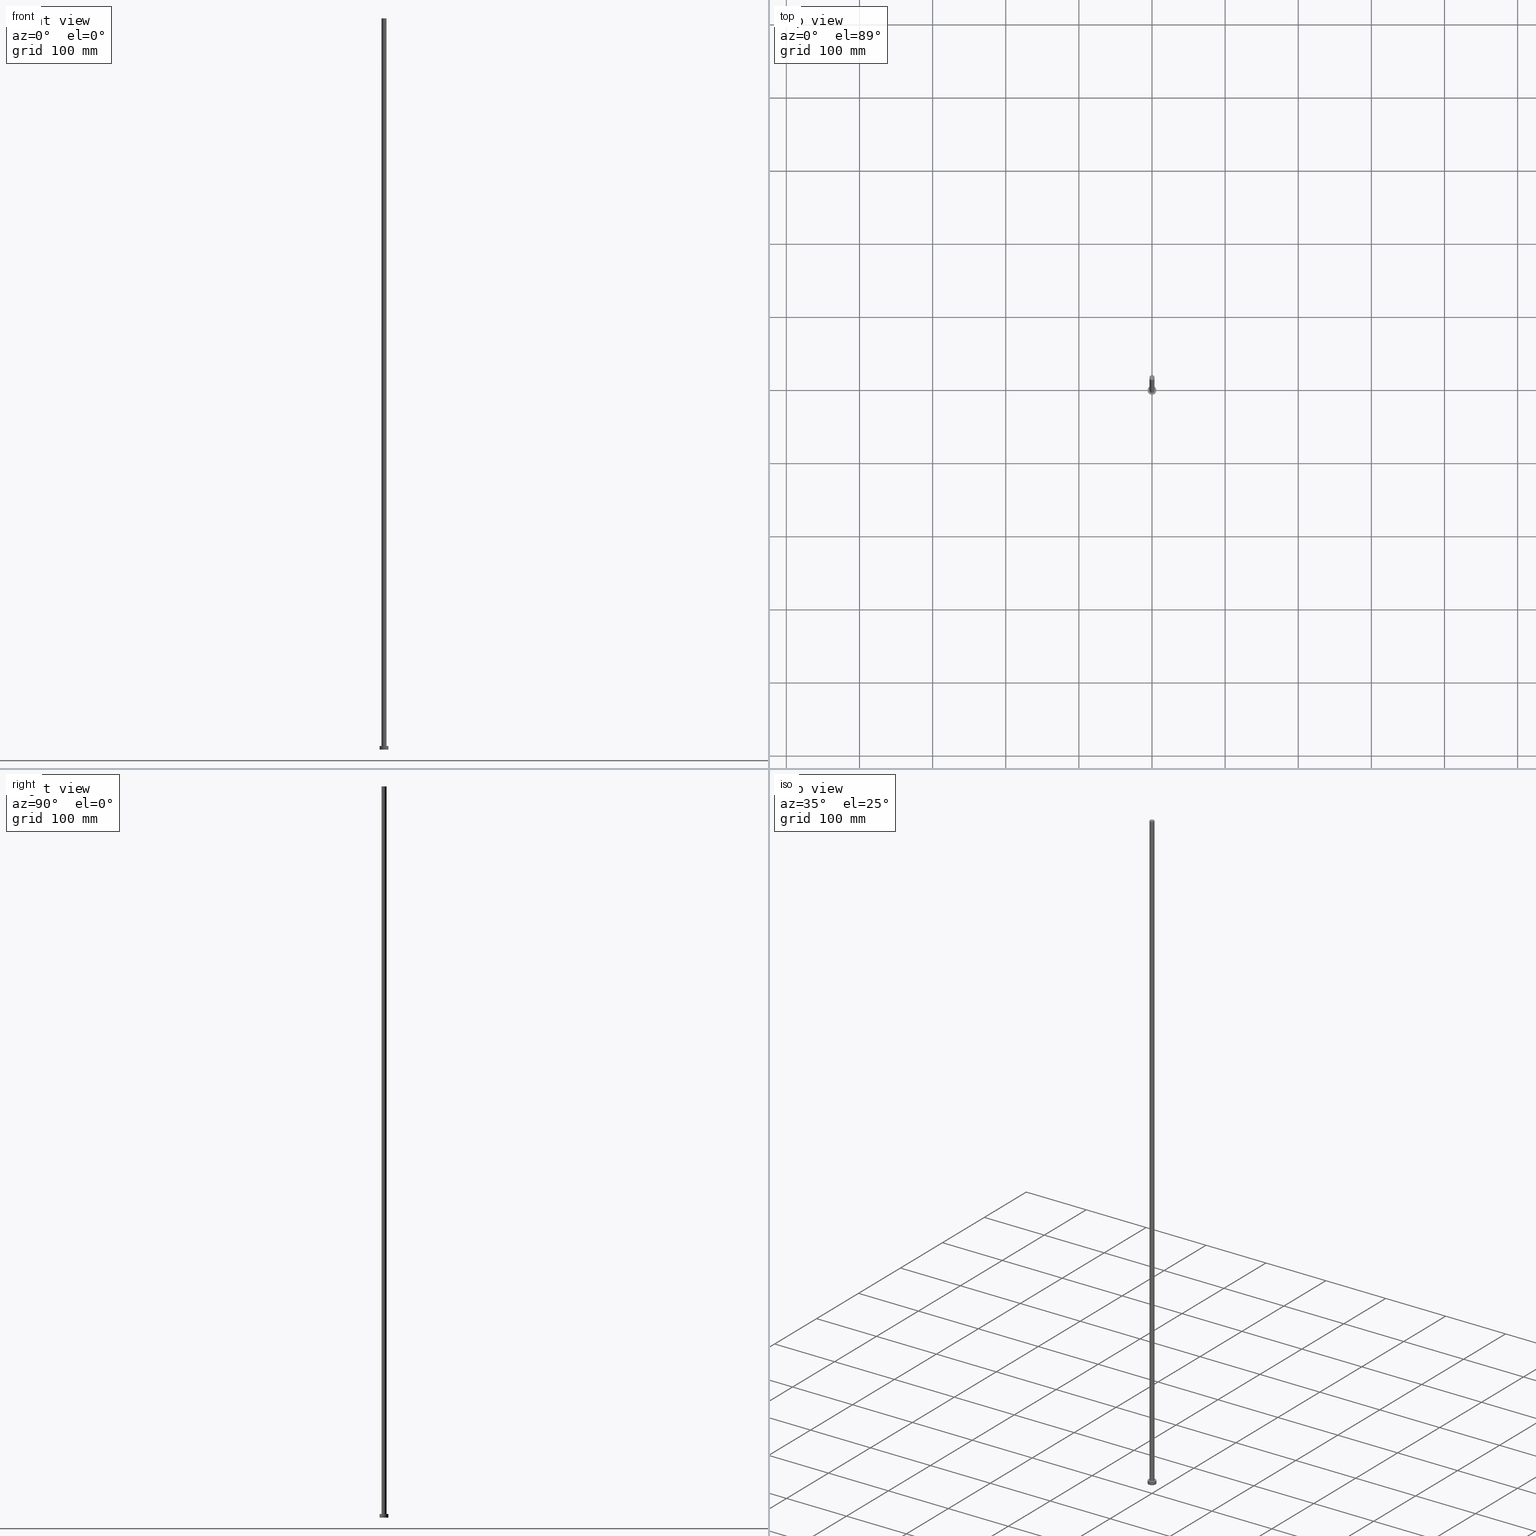
[diagram: canonical four-view strip — front | top / right | iso, engineering-drawing reading convention]
A machine part, canonical four-view strip (front | top / right | iso — engineering-drawing reading convention). The complete STEP part file that produces these views, byte-faithful:
ISO-10303-21;
HEADER;
FILE_DESCRIPTION (( 'STEP AP203' ),
    '1' );
FILE_NAME ('a66b.STEP',
    '2023-02-12T11:58:07',
    ( '' ),
    ( '' ),
    'SwSTEP 2.0',
    'SolidWorks 2019',
    '' );
FILE_SCHEMA (( 'CONFIG_CONTROL_DESIGN' ));
ENDSEC;

DATA;
#1 =( LENGTH_UNIT ( ) NAMED_UNIT ( * ) SI_UNIT ( .MILLI., .METRE. ) );
#2 = EDGE_LOOP ( 'NONE', ( #220, #7 ) ) ;
#3 = ORIENTED_EDGE ( 'NONE', *, *, #207, .F. ) ;
#4 = VECTOR ( 'NONE', #209, 1000.000000000000000 ) ;
#5 = ADVANCED_FACE ( 'NONE', ( #177 ), #117, .T. ) ;
#6 = CARTESIAN_POINT ( 'NONE',  ( 6.000000000000000888, 7.347880794884120722E-16, 0.000000000000000000 ) ) ;
#7 = ORIENTED_EDGE ( 'NONE', *, *, #219, .T. ) ;
#8 = DIRECTION ( 'NONE',  ( -0.000000000000000000, -0.000000000000000000, -1.000000000000000000 ) ) ;
#9 = CYLINDRICAL_SURFACE ( 'NONE', #119, 6.000000000000000888 ) ;
#10 = PERSON_AND_ORGANIZATION ( #11, #43 ) ;
#11 = PERSON ( 'NEUR�EN�', 'NEUR�EN�', 'NEUR�EN�', ('NEUR�EN�'), ('NEUR�EN�'), ('NEUR�EN�') ) ;
#12 = ADVANCED_FACE ( 'NONE', ( #161 ), #245, .T. ) ;
#13 = DIRECTION ( 'NONE',  ( 1.000000000000000000, 0.000000000000000000, 0.000000000000000000 ) ) ;
#14 = PERSON_AND_ORGANIZATION ( #11, #43 ) ;
#15 = DIRECTION ( 'NONE',  ( 1.000000000000000000, 0.000000000000000000, 0.000000000000000000 ) ) ;
#16 = VECTOR ( 'NONE', #105, 1000.000000000000000 ) ;
#17 = EDGE_LOOP ( 'NONE', ( #102, #158, #76, #215 ) ) ;
#18 = PERSON_AND_ORGANIZATION_ROLE ( 'design_supplier' ) ;
#19 = CC_DESIGN_APPROVAL ( #114, ( #20 ) ) ;
#20 = PRODUCT_DEFINITION ( 'NEZN�M�', '', #238, #185 ) ;
#21 = CARTESIAN_POINT ( 'NONE',  ( 0.000000000000000000, 0.000000000000000000, 1000.000000000000000 ) ) ;
#22 = ORIENTED_EDGE ( 'NONE', *, *, #154, .T. ) ;
#23 = APPROVAL ( #187, 'NEUR�EN�' ) ;
#24 = CARTESIAN_POINT ( 'NONE',  ( 6.000000000000000888, 7.347880794884120722E-16, 5.000000000000000000 ) ) ;
#25 = ADVANCED_BREP_SHAPE_REPRESENTATION ( 'a66b', ( #136, #225 ), #188 ) ;
#26 = APPROVAL_PERSON_ORGANIZATION ( #10, #23, #83 ) ;
#27 = CARTESIAN_POINT ( 'NONE',  ( 0.000000000000000000, 0.000000000000000000, 5.000000000000000000 ) ) ;
#28 = CYLINDRICAL_SURFACE ( 'NONE', #163, 3.500000000000000000 ) ;
#29 = DIRECTION ( 'NONE',  ( 1.000000000000000000, 0.000000000000000000, -0.000000000000000000 ) ) ;
#30 = EDGE_CURVE ( 'NONE', #217, #239, #96, .T. ) ;
#31 = APPROVAL_DATE_TIME ( #205, #114 ) ;
#32 = CC_DESIGN_PERSON_AND_ORGANIZATION_ASSIGNMENT ( #251, #18, ( #238 ) ) ;
#33 = PERSON_AND_ORGANIZATION ( #11, #43 ) ;
#34 = AXIS2_PLACEMENT_3D ( 'NONE', #125, #143, #94 ) ;
#35 = DIRECTION ( 'NONE',  ( -0.000000000000000000, -0.000000000000000000, -1.000000000000000000 ) ) ;
#36 = CARTESIAN_POINT ( 'NONE',  ( 0.000000000000000000, 0.000000000000000000, 0.000000000000000000 ) ) ;
#37 = DIRECTION ( 'NONE',  ( 1.000000000000000000, 0.000000000000000000, 0.000000000000000000 ) ) ;
#38 = ORIENTED_EDGE ( 'NONE', *, *, #173, .F. ) ;
#39 = DIRECTION ( 'NONE',  ( 1.000000000000000000, 0.000000000000000000, 0.000000000000000000 ) ) ;
#40 = CIRCLE ( 'NONE', #181, 6.000000000000000888 ) ;
#41 = ORIENTED_EDGE ( 'NONE', *, *, #122, .F. ) ;
#42 = ORIENTED_EDGE ( 'NONE', *, *, #30, .F. ) ;
#43 = ORGANIZATION ( 'NEUR�EN�', 'NEUR�EN�', '' ) ;
#44 = VERTEX_POINT ( 'NONE', #6 ) ;
#45 = CC_DESIGN_PERSON_AND_ORGANIZATION_ASSIGNMENT ( #48, #228, ( #20 ) ) ;
#46 = LINE ( 'NONE', #24, #246 ) ;
#47 = APPLICATION_PROTOCOL_DEFINITION ( 'international standard', 'config_control_design', 1994, #211 ) ;
#48 = PERSON_AND_ORGANIZATION ( #11, #43 ) ;
#49 = EDGE_CURVE ( 'NONE', #217, #155, #145, .T. ) ;
#50 = APPROVAL_DATE_TIME ( #72, #23 ) ;
#51 = CIRCLE ( 'NONE', #85, 6.000000000000000888 ) ;
#52 = CARTESIAN_POINT ( 'NONE',  ( 0.000000000000000000, 0.000000000000000000, 5.000000000000000000 ) ) ;
#53 = DIRECTION ( 'NONE',  ( 1.000000000000000000, 0.000000000000000000, 0.000000000000000000 ) ) ;
#54 = PERSON_AND_ORGANIZATION_ROLE ( 'classification_officer' ) ;
#55 = CARTESIAN_POINT ( 'NONE',  ( 0.000000000000000000, 0.000000000000000000, 1000.000000000000000 ) ) ;
#56 = EDGE_LOOP ( 'NONE', ( #41, #190, #111, #22 ) ) ;
#57 = EDGE_LOOP ( 'NONE', ( #116, #138 ) ) ;
#58 = DIRECTION ( 'NONE',  ( 0.000000000000000000, 0.000000000000000000, 1.000000000000000000 ) ) ;
#59 = PRODUCT_DEFINITION_SHAPE ( 'NONE', 'NONE',  #20 ) ;
#60 = APPROVAL_PERSON_ORGANIZATION ( #149, #114, #64 ) ;
#61 = DIRECTION ( 'NONE',  ( -0.000000000000000000, -0.000000000000000000, -1.000000000000000000 ) ) ;
#62 = CARTESIAN_POINT ( 'NONE',  ( 0.000000000000000000, 0.000000000000000000, 5.000000000000000000 ) ) ;
#63 = EDGE_CURVE ( 'NONE', #252, #44, #46, .T. ) ;
#64 = APPROVAL_ROLE ( '' ) ;
#65 = LINE ( 'NONE', #86, #4 ) ;
#66 = ADVANCED_FACE ( 'NONE', ( #80 ), #28, .T. ) ;
#67 = AXIS2_PLACEMENT_3D ( 'NONE', #200, #134, #71 ) ;
#68 = CALENDAR_DATE ( 2023, 12, 2 ) ;
#69 = CALENDAR_DATE ( 2023, 12, 2 ) ;
#70 = CARTESIAN_POINT ( 'NONE',  ( 0.000000000000000000, 0.000000000000000000, 0.000000000000000000 ) ) ;
#71 = DIRECTION ( 'NONE',  ( -1.000000000000000000, 0.000000000000000000, 0.000000000000000000 ) ) ;
#72 = DATE_AND_TIME ( #82, #166 ) ;
#73 = CARTESIAN_POINT ( 'NONE',  ( 3.500000000000000000, 4.286263797015735609E-16, 1000.000000000000000 ) ) ;
#74 = ORIENTED_EDGE ( 'NONE', *, *, #207, .T. ) ;
#75 = ADVANCED_FACE ( 'NONE', ( #224, #123 ), #203, .T. ) ;
#76 = ORIENTED_EDGE ( 'NONE', *, *, #140, .T. ) ;
#77 = ORIENTED_EDGE ( 'NONE', *, *, #49, .T. ) ;
#78 = CC_DESIGN_APPROVAL ( #167, ( #241 ) ) ;
#79 = DIRECTION ( 'NONE',  ( 1.000000000000000000, 0.000000000000000000, 0.000000000000000000 ) ) ;
#80 = FACE_OUTER_BOUND ( 'NONE', #56, .T. ) ;
#81 = DIRECTION ( 'NONE',  ( 1.000000000000000000, 0.000000000000000000, -0.000000000000000000 ) ) ;
#82 = CALENDAR_DATE ( 2023, 12, 2 ) ;
#83 = APPROVAL_ROLE ( '' ) ;
#84 = CARTESIAN_POINT ( 'NONE',  ( -6.000000000000000888, 0.000000000000000000, 0.000000000000000000 ) ) ;
#85 = AXIS2_PLACEMENT_3D ( 'NONE', #135, #170, #39 ) ;
#86 = CARTESIAN_POINT ( 'NONE',  ( 3.500000000000000000, 4.286263797015735609E-16, 1000.000000000000000 ) ) ;
#87 = DIRECTION ( 'NONE',  ( 0.000000000000000000, 0.000000000000000000, 1.000000000000000000 ) ) ;
#88 = DIRECTION ( 'NONE',  ( 1.000000000000000000, 0.000000000000000000, 0.000000000000000000 ) ) ;
#89 = ORIENTED_EDGE ( 'NONE', *, *, #186, .T. ) ;
#90 = EDGE_LOOP ( 'NONE', ( #3, #221, #213, #42 ) ) ;
#91 = ADVANCED_FACE ( 'NONE', ( #183 ), #9, .T. ) ;
#92 = DIRECTION ( 'NONE',  ( 0.000000000000000000, 0.000000000000000000, 1.000000000000000000 ) ) ;
#93 = AXIS2_PLACEMENT_3D ( 'NONE', #172, #233, #234 ) ;
#94 = DIRECTION ( 'NONE',  ( 1.000000000000000000, 0.000000000000000000, 0.000000000000000000 ) ) ;
#95 = DIRECTION ( 'NONE',  ( 0.000000000000000000, 0.000000000000000000, 1.000000000000000000 ) ) ;
#96 = LINE ( 'NONE', #243, #180 ) ;
#97 = ORIENTED_EDGE ( 'NONE', *, *, #63, .T. ) ;
#98 = CIRCLE ( 'NONE', #249, 3.500000000000000000 ) ;
#99 = LOCAL_TIME ( 12, 58, 7.000000000000000000, #189 ) ;
#100 = DIRECTION ( 'NONE',  ( 0.000000000000000000, 0.000000000000000000, 1.000000000000000000 ) ) ;
#101 = CARTESIAN_POINT ( 'NONE',  ( 0.000000000000000000, 0.000000000000000000, 1000.000000000000000 ) ) ;
#102 = ORIENTED_EDGE ( 'NONE', *, *, #63, .F. ) ;
#103 = LOCAL_TIME ( 12, 58, 7.000000000000000000, #168 ) ;
#104 = DATE_AND_TIME ( #69, #223 ) ;
#105 = DIRECTION ( 'NONE',  ( -0.000000000000000000, -0.000000000000000000, -1.000000000000000000 ) ) ;
#106 = ADVANCED_FACE ( 'NONE', ( #126 ), #151, .T. ) ;
#107 = PERSON_AND_ORGANIZATION_ROLE ( 'creator' ) ;
#108 = DIRECTION ( 'NONE',  ( 0.000000000000000000, 0.000000000000000000, 1.000000000000000000 ) ) ;
#109 = APPROVAL_ROLE ( '' ) ;
#110 = CARTESIAN_POINT ( 'NONE',  ( 0.000000000000000000, 0.000000000000000000, 5.000000000000000000 ) ) ;
#111 = ORIENTED_EDGE ( 'NONE', *, *, #30, .T. ) ;
#112 = AXIS2_PLACEMENT_3D ( 'NONE', #110, #197, #15 ) ;
#113 = CARTESIAN_POINT ( 'NONE',  ( 6.000000000000000888, 7.347880794884120722E-16, 5.000000000000000000 ) ) ;
#114 = APPROVAL ( #230, 'NEUR�EN�' ) ;
#115 = CARTESIAN_POINT ( 'NONE',  ( 3.500000000000000000, 4.286263797015735609E-16, 5.000000000000000000 ) ) ;
#116 = ORIENTED_EDGE ( 'NONE', *, *, #154, .F. ) ;
#117 = CYLINDRICAL_SURFACE ( 'NONE', #67, 6.000000000000000888 ) ;
#118 = PERSON_AND_ORGANIZATION_ROLE ( 'design_owner' ) ;
#119 = AXIS2_PLACEMENT_3D ( 'NONE', #62, #35, #227 ) ;
#120 = CC_DESIGN_DATE_AND_TIME_ASSIGNMENT ( #104, #226, ( #20 ) ) ;
#121 = VERTEX_POINT ( 'NONE', #84 ) ;
#122 = EDGE_CURVE ( 'NONE', #155, #174, #65, .T. ) ;
#123 = FACE_OUTER_BOUND ( 'NONE', #2, .T. ) ;
#124 = CIRCLE ( 'NONE', #93, 6.000000000000000888 ) ;
#125 = CARTESIAN_POINT ( 'NONE',  ( 0.000000000000000000, 0.000000000000000000, 1000.000000000000000 ) ) ;
#126 = FACE_OUTER_BOUND ( 'NONE', #201, .T. ) ;
#127 = CARTESIAN_POINT ( 'NONE',  ( -6.000000000000000888, 0.000000000000000000, 5.000000000000000000 ) ) ;
#128 = EDGE_LOOP ( 'NONE', ( #38, #255 ) ) ;
#129 = COORDINATED_UNIVERSAL_TIME_OFFSET ( 1, 0, .AHEAD. ) ;
#130 = DATE_AND_TIME ( #232, #206 ) ;
#131 = AXIS2_PLACEMENT_3D ( 'NONE', #27, #100, #81 ) ;
#132 = CIRCLE ( 'NONE', #148, 3.500000000000000000 ) ;
#133 = PLANE ( 'NONE',  #192 ) ;
#134 = DIRECTION ( 'NONE',  ( -0.000000000000000000, -0.000000000000000000, -1.000000000000000000 ) ) ;
#135 = CARTESIAN_POINT ( 'NONE',  ( 0.000000000000000000, 0.000000000000000000, 5.000000000000000000 ) ) ;
#136 = MANIFOLD_SOLID_BREP ( 'P�idat vysunut�m3', #159 ) ;
#137 = CARTESIAN_POINT ( 'NONE',  ( 0.000000000000000000, 0.000000000000000000, 5.000000000000000000 ) ) ;
#138 = ORIENTED_EDGE ( 'NONE', *, *, #160, .F. ) ;
#139 = ORIENTED_EDGE ( 'NONE', *, *, #219, .F. ) ;
#140 = EDGE_CURVE ( 'NONE', #198, #121, #247, .T. ) ;
#141 = PRODUCT ( 'a66b', 'a66b', '', ( #178 ) ) ;
#142 = CC_DESIGN_SECURITY_CLASSIFICATION ( #241, ( #238 ) ) ;
#143 = DIRECTION ( 'NONE',  ( 0.000000000000000000, 0.000000000000000000, 1.000000000000000000 ) ) ;
#144 = DIRECTION ( 'NONE',  ( -1.000000000000000000, 0.000000000000000000, 0.000000000000000000 ) ) ;
#145 = CIRCLE ( 'NONE', #34, 3.500000000000000000 ) ;
#146 = CALENDAR_DATE ( 2023, 12, 2 ) ;
#147 = CC_DESIGN_PERSON_AND_ORGANIZATION_ASSIGNMENT ( #242, #118, ( #141 ) ) ;
#148 = AXIS2_PLACEMENT_3D ( 'NONE', #137, #196, #13 ) ;
#149 = PERSON_AND_ORGANIZATION ( #11, #43 ) ;
#150 = APPROVAL_STATUS ( 'not_yet_approved' ) ;
#151 = PLANE ( 'NONE',  #222 ) ;
#152 = COORDINATED_UNIVERSAL_TIME_OFFSET ( 1, 0, .AHEAD. ) ;
#153 = FACE_OUTER_BOUND ( 'NONE', #128, .T. ) ;
#154 = EDGE_CURVE ( 'NONE', #239, #174, #229, .T. ) ;
#155 = VERTEX_POINT ( 'NONE', #73 ) ;
#156 = EDGE_LOOP ( 'NONE', ( #139, #97, #89, #235 ) ) ;
#157 = APPLICATION_CONTEXT ( 'configuration controlled 3d designs of mechanical parts and assemblies' ) ;
#158 = ORIENTED_EDGE ( 'NONE', *, *, #248, .F. ) ;
#159 = CLOSED_SHELL ( 'NONE', ( #12, #91, #5, #75, #244, #66, #106 ) ) ;
#160 = EDGE_CURVE ( 'NONE', #174, #239, #132, .T. ) ;
#161 = FACE_OUTER_BOUND ( 'NONE', #90, .T. ) ;
#162 = CIRCLE ( 'NONE', #202, 6.000000000000000888 ) ;
#163 = AXIS2_PLACEMENT_3D ( 'NONE', #101, #61, #144 ) ;
#164 = CC_DESIGN_APPROVAL ( #23, ( #238 ) ) ;
#165 = APPLICATION_PROTOCOL_DEFINITION ( 'international standard', 'config_control_design', 1994, #157 ) ;
#166 = LOCAL_TIME ( 12, 58, 7.000000000000000000, #129 ) ;
#167 = APPROVAL ( #150, 'NEUR�EN�' ) ;
#168 = COORDINATED_UNIVERSAL_TIME_OFFSET ( 1, 0, .AHEAD. ) ;
#169 = UNCERTAINTY_MEASURE_WITH_UNIT (LENGTH_MEASURE( 1.000000000000000082E-05 ), #1, 'distance_accuracy_value', 'NONE');
#170 = DIRECTION ( 'NONE',  ( 0.000000000000000000, 0.000000000000000000, 1.000000000000000000 ) ) ;
#171 = SHAPE_DEFINITION_REPRESENTATION ( #59, #25 ) ;
#172 = CARTESIAN_POINT ( 'NONE',  ( 0.000000000000000000, 0.000000000000000000, 0.000000000000000000 ) ) ;
#173 = EDGE_CURVE ( 'NONE', #121, #44, #40, .T. ) ;
#174 = VERTEX_POINT ( 'NONE', #115 ) ;
#175 = CARTESIAN_POINT ( 'NONE',  ( -6.000000000000000888, 0.000000000000000000, 5.000000000000000000 ) ) ;
#176 =( NAMED_UNIT ( * ) SI_UNIT ( $, .STERADIAN. ) SOLID_ANGLE_UNIT ( ) );
#177 = FACE_OUTER_BOUND ( 'NONE', #17, .T. ) ;
#178 = MECHANICAL_CONTEXT ( 'NONE', #211, 'mechanical' ) ;
#179 = DIRECTION ( 'NONE',  ( -0.000000000000000000, -0.000000000000000000, -1.000000000000000000 ) ) ;
#180 = VECTOR ( 'NONE', #179, 1000.000000000000000 ) ;
#181 = AXIS2_PLACEMENT_3D ( 'NONE', #70, #87, #88 ) ;
#182 = DIRECTION ( 'NONE',  ( -0.000000000000000000, -0.000000000000000000, -1.000000000000000000 ) ) ;
#183 = FACE_OUTER_BOUND ( 'NONE', #156, .T. ) ;
#184 = DIRECTION ( 'NONE',  ( -1.000000000000000000, 0.000000000000000000, 0.000000000000000000 ) ) ;
#185 = DESIGN_CONTEXT ( 'detailed design', #157, 'design' ) ;
#186 = EDGE_CURVE ( 'NONE', #44, #121, #124, .T. ) ;
#187 = APPROVAL_STATUS ( 'not_yet_approved' ) ;
#188 =( GEOMETRIC_REPRESENTATION_CONTEXT ( 3 ) GLOBAL_UNCERTAINTY_ASSIGNED_CONTEXT ( ( #169 ) ) GLOBAL_UNIT_ASSIGNED_CONTEXT ( ( #1, #237, #176 ) ) REPRESENTATION_CONTEXT ( 'NONE', 'WORKASPACE' ) );
#189 = COORDINATED_UNIVERSAL_TIME_OFFSET ( 1, 0, .AHEAD. ) ;
#190 = ORIENTED_EDGE ( 'NONE', *, *, #49, .F. ) ;
#191 = PRODUCT_RELATED_PRODUCT_CATEGORY ( 'detail', '', ( #141 ) ) ;
#192 = AXIS2_PLACEMENT_3D ( 'NONE', #36, #108, #195 ) ;
#193 = AXIS2_PLACEMENT_3D ( 'NONE', #21, #182, #184 ) ;
#194 = SECURITY_CLASSIFICATION_LEVEL ( 'unclassified' ) ;
#195 = DIRECTION ( 'NONE',  ( 1.000000000000000000, 0.000000000000000000, -0.000000000000000000 ) ) ;
#196 = DIRECTION ( 'NONE',  ( 0.000000000000000000, 0.000000000000000000, 1.000000000000000000 ) ) ;
#197 = DIRECTION ( 'NONE',  ( 0.000000000000000000, 0.000000000000000000, 1.000000000000000000 ) ) ;
#198 = VERTEX_POINT ( 'NONE', #175 ) ;
#199 = CC_DESIGN_PERSON_AND_ORGANIZATION_ASSIGNMENT ( #214, #107, ( #238 ) ) ;
#200 = CARTESIAN_POINT ( 'NONE',  ( 0.000000000000000000, 0.000000000000000000, 5.000000000000000000 ) ) ;
#201 = EDGE_LOOP ( 'NONE', ( #77, #74 ) ) ;
#202 = AXIS2_PLACEMENT_3D ( 'NONE', #52, #58, #53 ) ;
#203 = PLANE ( 'NONE',  #131 ) ;
#204 = CARTESIAN_POINT ( 'NONE',  ( 0.000000000000000000, 0.000000000000000000, 0.000000000000000000 ) ) ;
#205 = DATE_AND_TIME ( #146, #99 ) ;
#206 = LOCAL_TIME ( 12, 58, 7.000000000000000000, #152 ) ;
#207 = EDGE_CURVE ( 'NONE', #155, #217, #98, .T. ) ;
#208 = COORDINATED_UNIVERSAL_TIME_OFFSET ( 1, 0, .AHEAD. ) ;
#209 = DIRECTION ( 'NONE',  ( -0.000000000000000000, -0.000000000000000000, -1.000000000000000000 ) ) ;
#210 = APPROVAL_DATE_TIME ( #130, #167 ) ;
#211 = APPLICATION_CONTEXT ( 'configuration controlled 3d designs of mechanical parts and assemblies' ) ;
#212 = CARTESIAN_POINT ( 'NONE',  ( -3.500000000000000000, 0.000000000000000000, 1000.000000000000000 ) ) ;
#213 = ORIENTED_EDGE ( 'NONE', *, *, #160, .T. ) ;
#214 = PERSON_AND_ORGANIZATION ( #11, #43 ) ;
#215 = ORIENTED_EDGE ( 'NONE', *, *, #173, .T. ) ;
#216 = CARTESIAN_POINT ( 'NONE',  ( -3.500000000000000000, 0.000000000000000000, 5.000000000000000000 ) ) ;
#217 = VERTEX_POINT ( 'NONE', #212 ) ;
#218 = DATE_AND_TIME ( #68, #103 ) ;
#219 = EDGE_CURVE ( 'NONE', #252, #198, #162, .T. ) ;
#220 = ORIENTED_EDGE ( 'NONE', *, *, #248, .T. ) ;
#221 = ORIENTED_EDGE ( 'NONE', *, *, #122, .T. ) ;
#222 = AXIS2_PLACEMENT_3D ( 'NONE', #250, #231, #29 ) ;
#223 = LOCAL_TIME ( 12, 58, 7.000000000000000000, #208 ) ;
#224 = FACE_BOUND ( 'NONE', #57, .T. ) ;
#225 = AXIS2_PLACEMENT_3D ( 'NONE', #204, #95, #79 ) ;
#226 = DATE_TIME_ROLE ( 'creation_date' ) ;
#227 = DIRECTION ( 'NONE',  ( -1.000000000000000000, 0.000000000000000000, 0.000000000000000000 ) ) ;
#228 = PERSON_AND_ORGANIZATION_ROLE ( 'creator' ) ;
#229 = CIRCLE ( 'NONE', #112, 3.500000000000000000 ) ;
#230 = APPROVAL_STATUS ( 'not_yet_approved' ) ;
#231 = DIRECTION ( 'NONE',  ( 0.000000000000000000, 0.000000000000000000, 1.000000000000000000 ) ) ;
#232 = CALENDAR_DATE ( 2023, 12, 2 ) ;
#233 = DIRECTION ( 'NONE',  ( 0.000000000000000000, 0.000000000000000000, 1.000000000000000000 ) ) ;
#234 = DIRECTION ( 'NONE',  ( 1.000000000000000000, 0.000000000000000000, 0.000000000000000000 ) ) ;
#235 = ORIENTED_EDGE ( 'NONE', *, *, #140, .F. ) ;
#236 = CC_DESIGN_DATE_AND_TIME_ASSIGNMENT ( #218, #254, ( #241 ) ) ;
#237 =( NAMED_UNIT ( * ) PLANE_ANGLE_UNIT ( ) SI_UNIT ( $, .RADIAN. ) );
#238 = PRODUCT_DEFINITION_FORMATION_WITH_SPECIFIED_SOURCE ( 'LIBOVOLN�', '', #141, .NOT_KNOWN. ) ;
#239 = VERTEX_POINT ( 'NONE', #216 ) ;
#240 = CC_DESIGN_PERSON_AND_ORGANIZATION_ASSIGNMENT ( #14, #54, ( #241 ) ) ;
#241 = SECURITY_CLASSIFICATION ( '', '', #194 ) ;
#242 = PERSON_AND_ORGANIZATION ( #11, #43 ) ;
#243 = CARTESIAN_POINT ( 'NONE',  ( -3.500000000000000000, 0.000000000000000000, 1000.000000000000000 ) ) ;
#244 = ADVANCED_FACE ( 'NONE', ( #153 ), #133, .F. ) ;
#245 = CYLINDRICAL_SURFACE ( 'NONE', #193, 3.500000000000000000 ) ;
#246 = VECTOR ( 'NONE', #8, 1000.000000000000000 ) ;
#247 = LINE ( 'NONE', #127, #16 ) ;
#248 = EDGE_CURVE ( 'NONE', #198, #252, #51, .T. ) ;
#249 = AXIS2_PLACEMENT_3D ( 'NONE', #55, #92, #37 ) ;
#250 = CARTESIAN_POINT ( 'NONE',  ( 0.000000000000000000, 0.000000000000000000, 1000.000000000000000 ) ) ;
#251 = PERSON_AND_ORGANIZATION ( #11, #43 ) ;
#252 = VERTEX_POINT ( 'NONE', #113 ) ;
#253 = APPROVAL_PERSON_ORGANIZATION ( #33, #167, #109 ) ;
#254 = DATE_TIME_ROLE ( 'classification_date' ) ;
#255 = ORIENTED_EDGE ( 'NONE', *, *, #186, .F. ) ;
ENDSEC;
END-ISO-10303-21;
